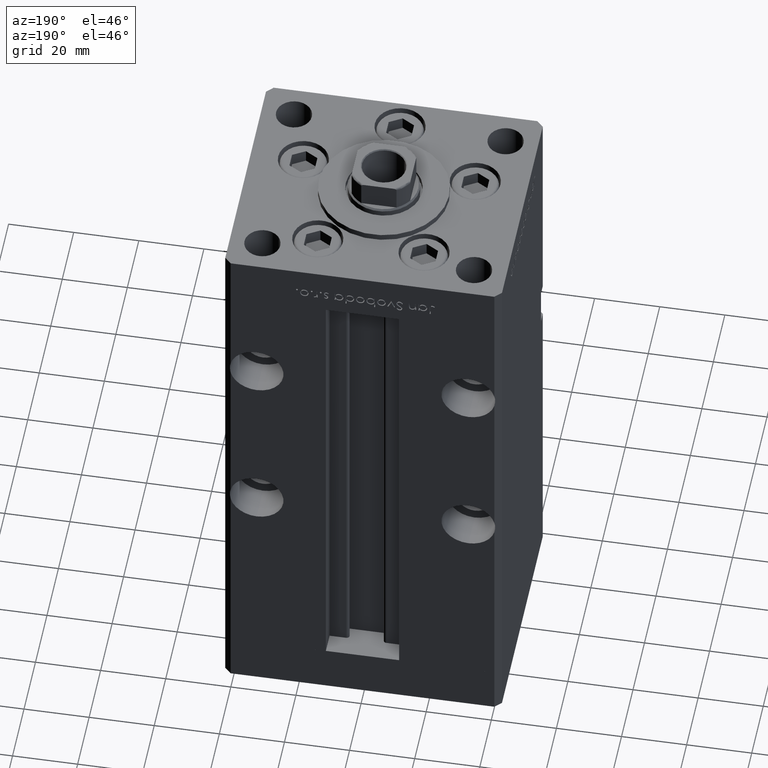
[diagram: clean part render]
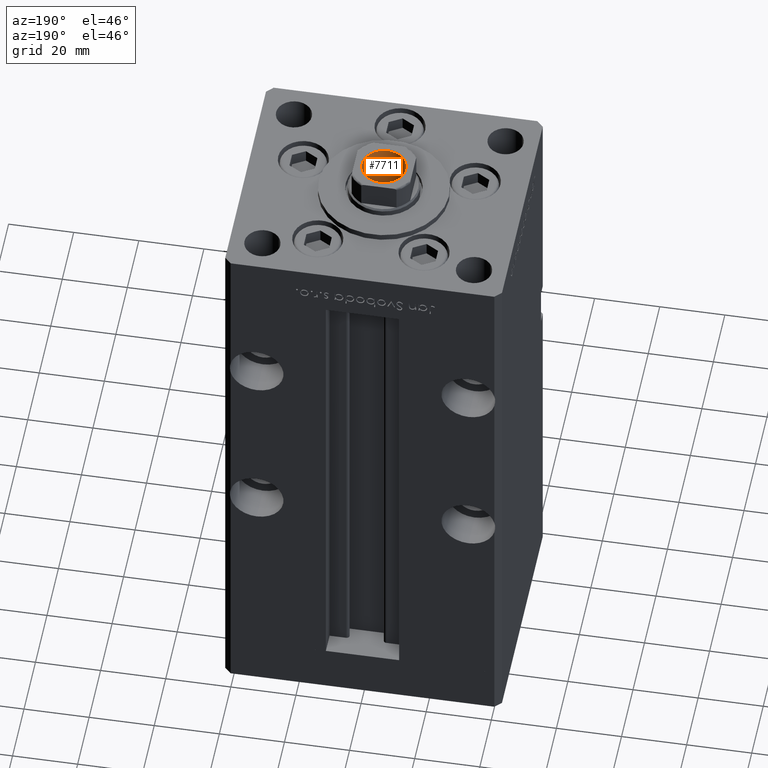
[diagram: same view with one face highlighted and labeled with its STEP entity id]
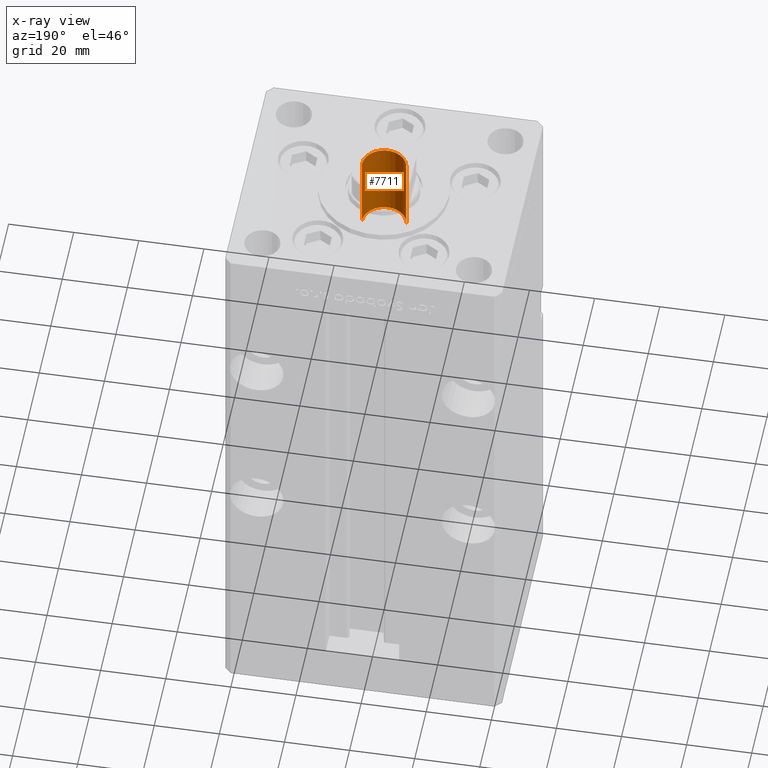
[diagram: x-ray of the same camera — body ghosted, the highlighted face saturated]
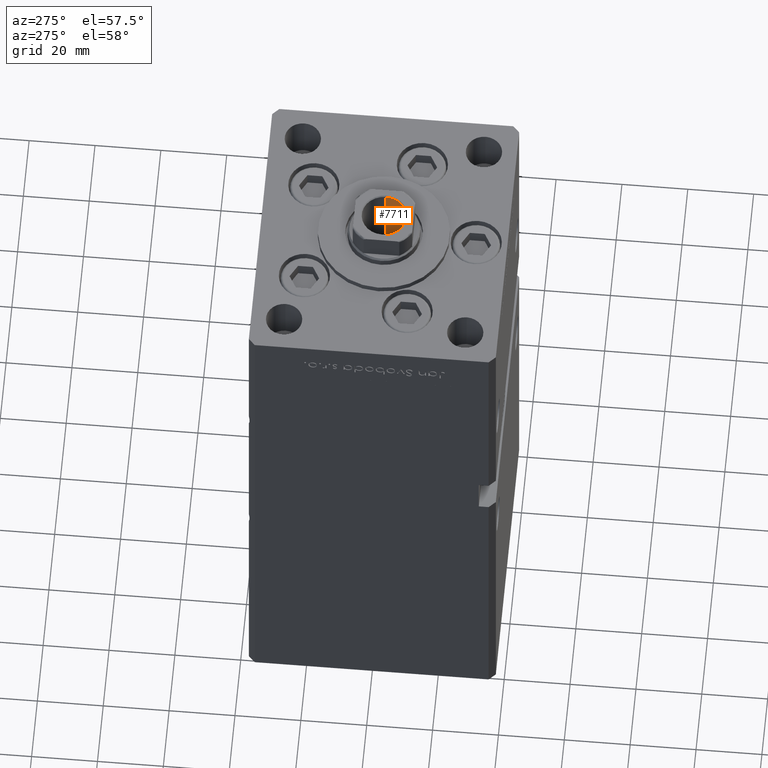
[diagram: same view with one face highlighted and labeled with its STEP entity id]
A machine part, auxiliary view. The second image highlights one B-rep face of the part: STEP entity #7711.
The next image is the same camera in x-ray: the body ghosted, the highlighted face saturated — about 0% of this face is hidden behind the body in this view.
A second angle (auxiliary view) of the same face is appended — the face is thin or edge-on in the first view.
In plain terms, the highlighted cylindrical surface (edge-blend (fillet) strip) has radius 6.75 mm, axis along (0, 0, 1).
Its self-contained STEP definition (entity closure, byte-faithful):
#2268 = ORIENTED_EDGE ( 'NONE', *, *, #2450, .T. ) ;
#2450 = EDGE_CURVE ( 'NONE', #49141, #32854, #31194, .T. ) ;
#3713 = DIRECTION ( 'NONE',  ( 0.000000000000000000, 0.000000000000000000, 1.000000000000000000 ) ) ;
#3879 = CARTESIAN_POINT ( 'NONE',  ( 0.000000000000000000, 0.000000000000000000, 130.7500000000000000 ) ) ;
#3966 = CARTESIAN_POINT ( 'NONE',  ( -6.749999999999993783, 8.266365894244626445E-16, 130.7500000000000000 ) ) ;
#3985 = DIRECTION ( 'NONE',  ( 1.000000000000000000, 0.000000000000000000, 0.000000000000000000 ) ) ;
#4669 = ORIENTED_EDGE ( 'NONE', *, *, #30421, .F. ) ;
#7711 = ADVANCED_FACE ( 'NONE', ( #25794 ), #14252, .F. ) ;
#14252 = CYLINDRICAL_SURFACE ( 'NONE', #21697, 6.749999999999995559 ) ;
#16252 = DIRECTION ( 'NONE',  ( -0.000000000000000000, -0.000000000000000000, 1.000000000000000000 ) ) ;
#16769 = CARTESIAN_POINT ( 'NONE',  ( 0.000000000000000000, 0.000000000000000000, 155.7500000000000000 ) ) ;
#17882 = CARTESIAN_POINT ( 'NONE',  ( -6.749999999999995559, 8.266365894244628417E-16, 155.4499999999999886 ) ) ;
#20006 = DIRECTION ( 'NONE',  ( 1.000000000000000000, 0.000000000000000000, 0.000000000000000000 ) ) ;
#20509 = VECTOR ( 'NONE', #36742, 1000.000000000000000 ) ;
#21697 = AXIS2_PLACEMENT_3D ( 'NONE', #16769, #33147, #43241 ) ;
#22676 = AXIS2_PLACEMENT_3D ( 'NONE', #36214, #3713, #3985 ) ;
#22702 = ORIENTED_EDGE ( 'NONE', *, *, #29139, .F. ) ;
#24613 = VERTEX_POINT ( 'NONE', #46026 ) ;
#25794 = FACE_OUTER_BOUND ( 'NONE', #40960, .T. ) ;
#27167 = DIRECTION ( 'NONE',  ( -0.000000000000000000, -0.000000000000000000, 1.000000000000000000 ) ) ;
#29139 = EDGE_CURVE ( 'NONE', #35784, #24613, #44794, .T. ) ;
#30421 = EDGE_CURVE ( 'NONE', #49141, #35784, #34290, .T. ) ;
#31194 = LINE ( 'NONE', #35746, #34378 ) ;
#32854 = VERTEX_POINT ( 'NONE', #17882 ) ;
#33147 = DIRECTION ( 'NONE',  ( -0.000000000000000000, -0.000000000000000000, 1.000000000000000000 ) ) ;
#34290 = CIRCLE ( 'NONE', #36866, 6.749999999999993783 ) ;
#34378 = VECTOR ( 'NONE', #27167, 1000.000000000000000 ) ;
#35746 = CARTESIAN_POINT ( 'NONE',  ( -6.749999999999995559, 8.266365894244628417E-16, 155.7500000000000000 ) ) ;
#35784 = VERTEX_POINT ( 'NONE', #50200 ) ;
#36214 = CARTESIAN_POINT ( 'NONE',  ( 0.000000000000000000, 0.000000000000000000, 155.4499999999999886 ) ) ;
#36469 = CARTESIAN_POINT ( 'NONE',  ( 6.749999999999995559, 0.000000000000000000, 155.7500000000000000 ) ) ;
#36742 = DIRECTION ( 'NONE',  ( -0.000000000000000000, -0.000000000000000000, 1.000000000000000000 ) ) ;
#36866 = AXIS2_PLACEMENT_3D ( 'NONE', #3879, #16252, #20006 ) ;
#39085 = ORIENTED_EDGE ( 'NONE', *, *, #47119, .T. ) ;
#40960 = EDGE_LOOP ( 'NONE', ( #4669, #2268, #39085, #22702 ) ) ;
#43241 = DIRECTION ( 'NONE',  ( 1.000000000000000000, 0.000000000000000000, 0.000000000000000000 ) ) ;
#44794 = LINE ( 'NONE', #36469, #20509 ) ;
#46026 = CARTESIAN_POINT ( 'NONE',  ( 6.749999999999995559, 0.000000000000000000, 155.4499999999999886 ) ) ;
#47119 = EDGE_CURVE ( 'NONE', #32854, #24613, #49244, .T. ) ;
#49141 = VERTEX_POINT ( 'NONE', #3966 ) ;
#49244 = CIRCLE ( 'NONE', #22676, 6.749999999999995559 ) ;
#50200 = CARTESIAN_POINT ( 'NONE',  ( 6.749999999999993783, 0.000000000000000000, 130.7500000000000000 ) ) ;